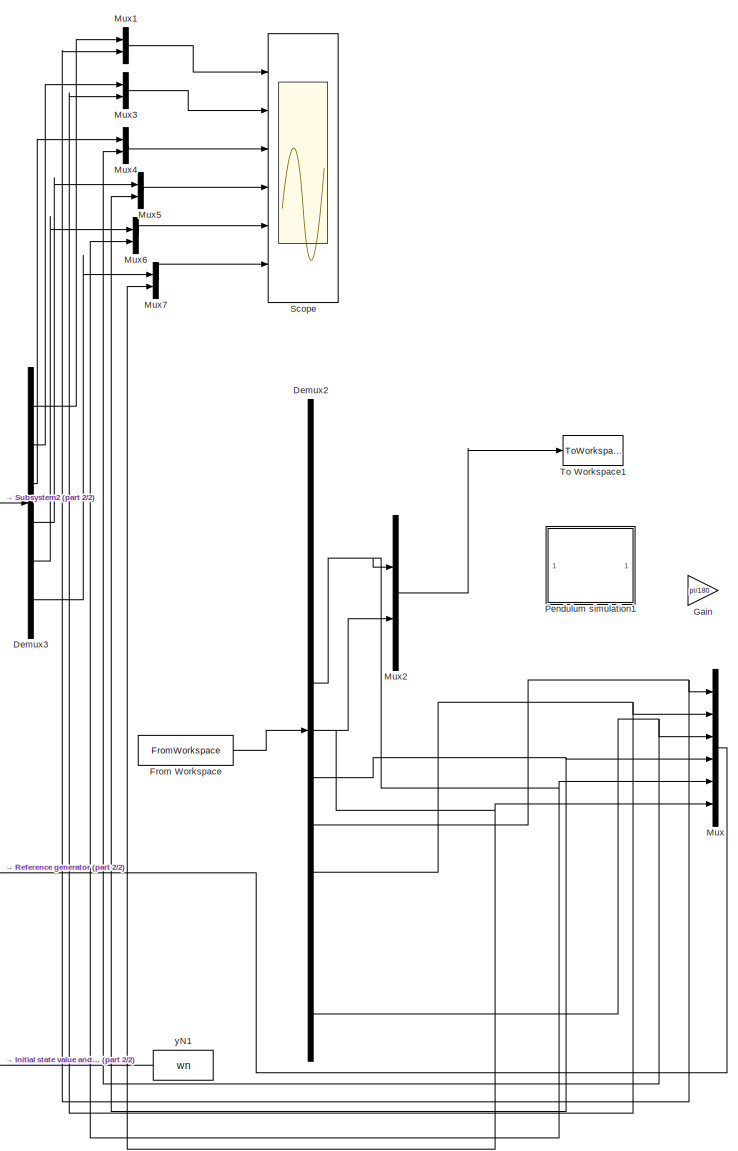
[diagram: root canvas - part 1/2, right side, full height]
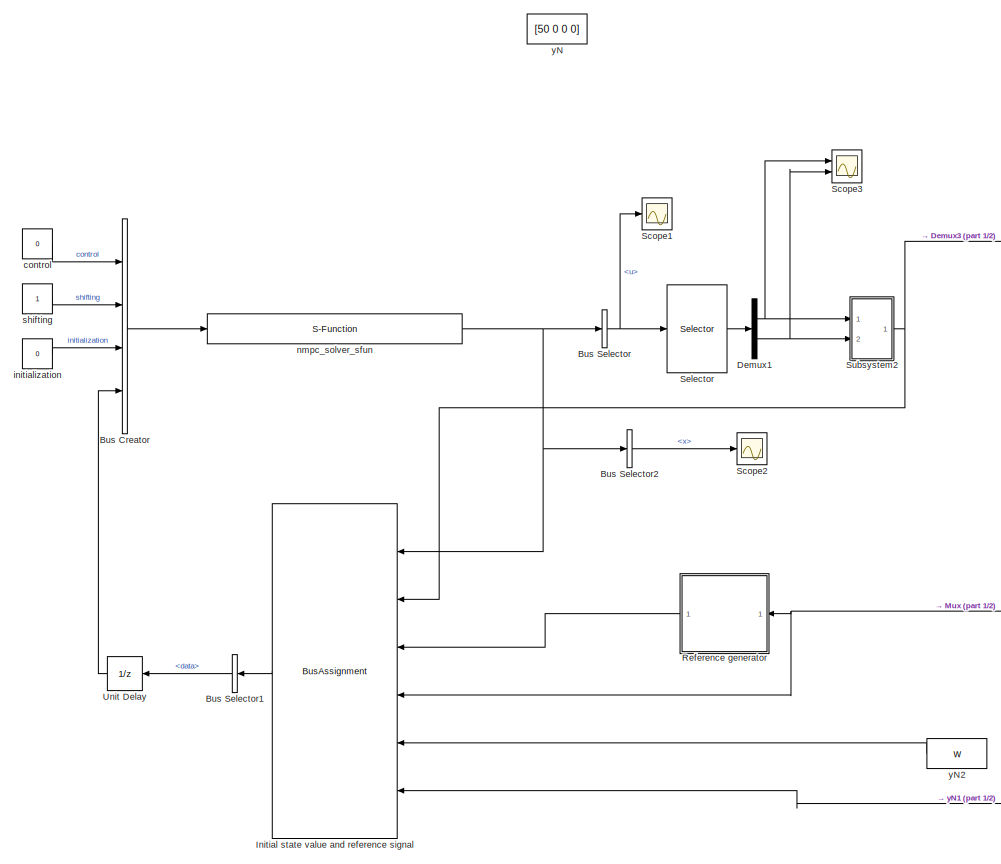
[diagram: root canvas - part 2/2, middle left region]
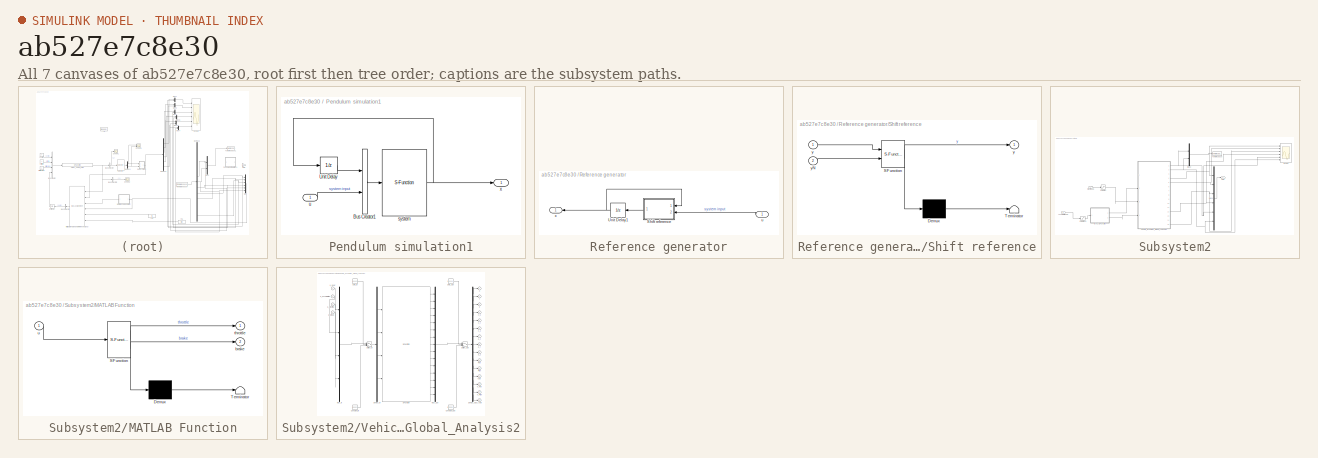
[diagram: thumbnail index - all 7 canvases of the model, root first then tree order]
MODEL slx_ab527e7c8e30
KIND model
CONFIG AbsTol = auto
CONFIG FixedStep = 0.001
CONFIG MaxStep = auto
CONFIG MinStep = auto
CONFIG RelTol = 1e-3
CONFIG SampleTimeConstraint = Unconstrained
CONFIG Solver = FixedStepAuto
CONFIG SolverMode = Auto
CONFIG SolverName = FixedStepAuto
CONFIG StartTime = 0.0
CONFIG StopTime = 2.38
BLOCK [BusCreator] Bus Creator
  DisplayOption = bar
  InheritFromInputs = on
  Inputs = 4
  OutDataTypeStr = Bus: ACADOinput
  Ports = [4, 1]
BLOCK [BusSelector] Bus Selector
  OutputSignals = data.u
  Ports = [1, 1]
BLOCK [BusSelector] Bus Selector1
  OutputSignals = data
  Ports = [1, 1]
BLOCK [BusSelector] Bus Selector2
  OutputSignals = data.x
  Ports = [1, 1]
BLOCK [Demux] Demux1
  DisplayOption = bar
  Outputs = 2
  Ports = [1, 2]
BLOCK [Demux] Demux2
  DisplayOption = bar
  Outputs = 13
  Ports = [1, 13]
BLOCK [Demux] Demux3
  DisplayOption = bar
  Outputs = 6
  Ports = [1, 6]
BLOCK [FromWorkspace] From Workspace
  SampleTime = 0.001
  VariableName = ddd
  ZeroCross = on
BLOCK [Gain] Gain
  Gain = pi/180
  OutDataTypeStr = Inherit: Inherit via internal rule
  ParamDataTypeStr = Inherit: Inherit via internal rule
  SaturateOnIntegerOverflow = off
BLOCK [BusAssignment] Initial state value and reference signal
  AssignedSignals = data.x0,data.y,data.yN,data.W,data.WN
  Ports = [6, 1]
BLOCK [Mux] Mux
  DisplayOption = bar
  Inputs = 6
  Ports = [6, 1]
BLOCK [Mux] Mux1
  DisplayOption = bar
  Inputs = 2
  Ports = [2, 1]
BLOCK [Mux] Mux2
  DisplayOption = bar
  Inputs = 2
  Ports = [2, 1]
BLOCK [Mux] Mux3
  DisplayOption = bar
  Inputs = 2
  Ports = [2, 1]
BLOCK [Mux] Mux4
  DisplayOption = bar
  Inputs = 2
  Ports = [2, 1]
BLOCK [Mux] Mux5
  DisplayOption = bar
  Inputs = 2
  Ports = [2, 1]
BLOCK [Mux] Mux6
  DisplayOption = bar
  Inputs = 2
  Ports = [2, 1]
BLOCK [Mux] Mux7
  DisplayOption = bar
  Inputs = 2
  Ports = [2, 1]
BLOCK [SubSystem] Pendulum simulation1
  Commented = on
  Ports = [1, 1]
  RequestExecContextInheritance = off
  Variant = off
BLOCK [BusCreator] Pendulum simulation1/Bus Creator1
  DisplayOption = bar
  InheritFromInputs = on
  Inputs = 2
  Ports = [2, 1]
BLOCK [UnitDelay] Pendulum simulation1/Unit Delay
  InitialCondition = init.x0
  InputProcessing = Elements as channels (sample based)
  SampleTime = Ts
BLOCK [S-Function] Pendulum simulation1/system
  EnableBusSupport = off
  FunctionName = systemModel
  Ports = [1, 1]
  SFunctionDeploymentMode = off
BLOCK [Inport] Pendulum simulation1/u
  IconDisplay = Port number
BLOCK [Outport] Pendulum simulation1/x
  IconDisplay = Port number
BLOCK [SubSystem] Reference generator
  Ports = [1, 1]
  RequestExecContextInheritance = off
  Variant = off
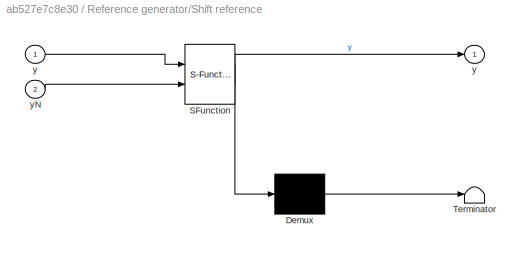
BLOCK [SubSystem] Reference generator/Shift reference
  ErrorFcn = Stateflow.Translate.translate
  PermitHierarchicalResolution = ExplicitOnly
  Ports = [2, 1]
  RequestExecContextInheritance = off
  SFBlockType = MATLAB Function
  TreatAsAtomicUnit = on
  Variant = off
BLOCK [Demux] Reference generator/Shift reference/ Demux 
  Outputs = 1
  Ports = [1, 1]
BLOCK [S-Function] Reference generator/Shift reference/ SFunction 
  EnableBusSupport = on
  FunctionName = sf_sfun
  PortCounts = [2 2]
  Ports = [2, 2]
  SFunctionDeploymentMode = off
  Tag = Stateflow S-Function untitled1 2
BLOCK [Terminator] Reference generator/Shift reference/ Terminator 
BLOCK [Outport] Reference generator/Shift reference/y
  IconDisplay = Port number
BLOCK [Inport] Reference generator/Shift reference/y 
  IconDisplay = Port number
BLOCK [Inport] Reference generator/Shift reference/yN
  IconDisplay = Port number
  Port = 2
BLOCK [UnitDelay] Reference generator/Unit Delay1
  InitialCondition = init.y
  SampleTime = Ts
BLOCK [Inport] Reference generator/u
  IconDisplay = Port number
BLOCK [Outport] Reference generator/x
  IconDisplay = Port number
BLOCK [Scope] Scope
  NumInputPorts = 6
  Ports = [6]
  ScopeSpecificationString = Simulink.scopes.TimeScopeBlockCfg('CurrentConfiguration', extmgr.ConfigurationSet(extmgr.Configuration('Core','General UI',true),extmgr.Configuration('Core','Source UI',true),extmgr.Configuration('Sources','WiredSimulink',true,'DataLoggingSaveFormat','Array','DataLoggingDecimation','1'),extmgr.Configuration('Visuals','Time Domain',true,'TimeAxisLabels','All','SerializedDisplays',{struct('MinYLimRe...<+5107ch>
BLOCK [Scope] Scope1
  Ports = [1]
  ScopeSpecificationString = Simulink.scopes.TimeScopeBlockCfg('CurrentConfiguration', extmgr.ConfigurationSet(extmgr.Configuration('Core','General UI',true),extmgr.Configuration('Core','Source UI',true),extmgr.Configuration('Sources','WiredSimulink',true,'DataLoggingVariableName','ScopeData1'),extmgr.Configuration('Visuals','Time Domain',true,'SerializedDisplays',{struct('MinYLimReal','-1.25','MaxYLimReal','1.25','YLabelReal...<+2932ch>
BLOCK [Scope] Scope2
  Ports = [1]
  ScopeSpecificationString = Simulink.scopes.TimeScopeBlockCfg('CurrentConfiguration', extmgr.ConfigurationSet(extmgr.Configuration('Core','General UI',true),extmgr.Configuration('Core','Source UI',true),extmgr.Configuration('Sources','WiredSimulink',true,'DataLoggingVariableName','ScopeData1'),extmgr.Configuration('Visuals','Time Domain',true,'SerializedDisplays',{struct('MinYLimReal','-1.00000','MaxYLimReal','1.00000','YLab...<+3810ch>
BLOCK [Scope] Scope3
  NumInputPorts = 2
  Ports = [2]
  ScopeSpecificationString = Simulink.scopes.TimeScopeBlockCfg('CurrentConfiguration', extmgr.ConfigurationSet(extmgr.Configuration('Core','General UI',true),extmgr.Configuration('Core','Source UI',true),extmgr.Configuration('Sources','WiredSimulink',true,'DataLoggingVariableName','ScopeData2'),extmgr.Configuration('Visuals','Time Domain',true,'SerializedDisplays',{struct('MinYLimReal','-0.7854','MaxYLimReal','0.7854','YLabel...<+2060ch>
BLOCK [Selector] Selector
  IndexOptions = Index vector (dialog)
  Indices = [1 2]
  InputPortWidth = 160
  OutputSizes = 2
  Ports = [1, 1]
BLOCK [SubSystem] Subsystem2
  Ports = [2, 1]
  RequestExecContextInheritance = off
  Variant = off
BLOCK [Inport] Subsystem2/Acceleration U2
  IconDisplay = Port number
  Port = 2
BLOCK [SubSystem] Subsystem2/MATLAB Function
  ErrorFcn = Stateflow.Translate.translate
  PermitHierarchicalResolution = ExplicitOnly
  Ports = [1, 2]
  RequestExecContextInheritance = off
  SFBlockType = MATLAB Function
  TreatAsAtomicUnit = on
  Variant = off
BLOCK [Demux] Subsystem2/MATLAB Function/ Demux 
  Outputs = 1
  Ports = [1, 1]
BLOCK [S-Function] Subsystem2/MATLAB Function/ SFunction 
  EnableBusSupport = on
  FunctionName = sf_sfun
  PortCounts = [1 3]
  Ports = [1, 3]
  SFunctionDeploymentMode = off
  Tag = Stateflow S-Function untitled1 1
BLOCK [Terminator] Subsystem2/MATLAB Function/ Terminator 
BLOCK [Outport] Subsystem2/MATLAB Function/brake
  IconDisplay = Port number
  Port = 2
BLOCK [Outport] Subsystem2/MATLAB Function/throttle
  IconDisplay = Port number
BLOCK [Inport] Subsystem2/MATLAB Function/u
  IconDisplay = Port number
BLOCK [Mux] Subsystem2/Mux1
  DisplayOption = bar
  Inputs = 6
  Ports = [6, 1]
BLOCK [Mux] Subsystem2/Mux2
  DisplayOption = bar
  Inputs = 2
  Ports = [2, 1]
BLOCK [Outport] Subsystem2/Out1
  IconDisplay = Port number
BLOCK [Saturate] Subsystem2/Saturation
  InputPortMap = u0
  LowerLimit = -1
  Ports = [1, 1]
  UpperLimit = 1
BLOCK [Saturate] Subsystem2/Saturation1
  InputPortMap = u0
  LowerLimit = -1
  Ports = [1, 1]
  UpperLimit = 1
BLOCK [Scope] Subsystem2/Scope
  NumInputPorts = 6
  Ports = [6]
  ScopeSpecificationString = Simulink.scopes.TimeScopeBlockCfg('CurrentConfiguration', extmgr.ConfigurationSet(extmgr.Configuration('Core','General UI',true),extmgr.Configuration('Core','Source UI',true),extmgr.Configuration('Sources','WiredSimulink',true,'DataLoggingVariableName','ScopeData1'),extmgr.Configuration('Visuals','Time Domain',true,'SerializedDisplays',{struct('MinYLimReal','22.76003','MaxYLimReal','24.63111','YLa...<+4965ch>
BLOCK [Inport] Subsystem2/Steering U1
  IconDisplay = Port number
BLOCK [ToWorkspace] Subsystem2/To Workspace
  FixptAsFi = on
  MaxDataPoints = inf
  Ports = [1]
  SampleTime = -1
  Save2DSignal = 3-D array (concatenate along third dimension)
  VariableName = trajE1
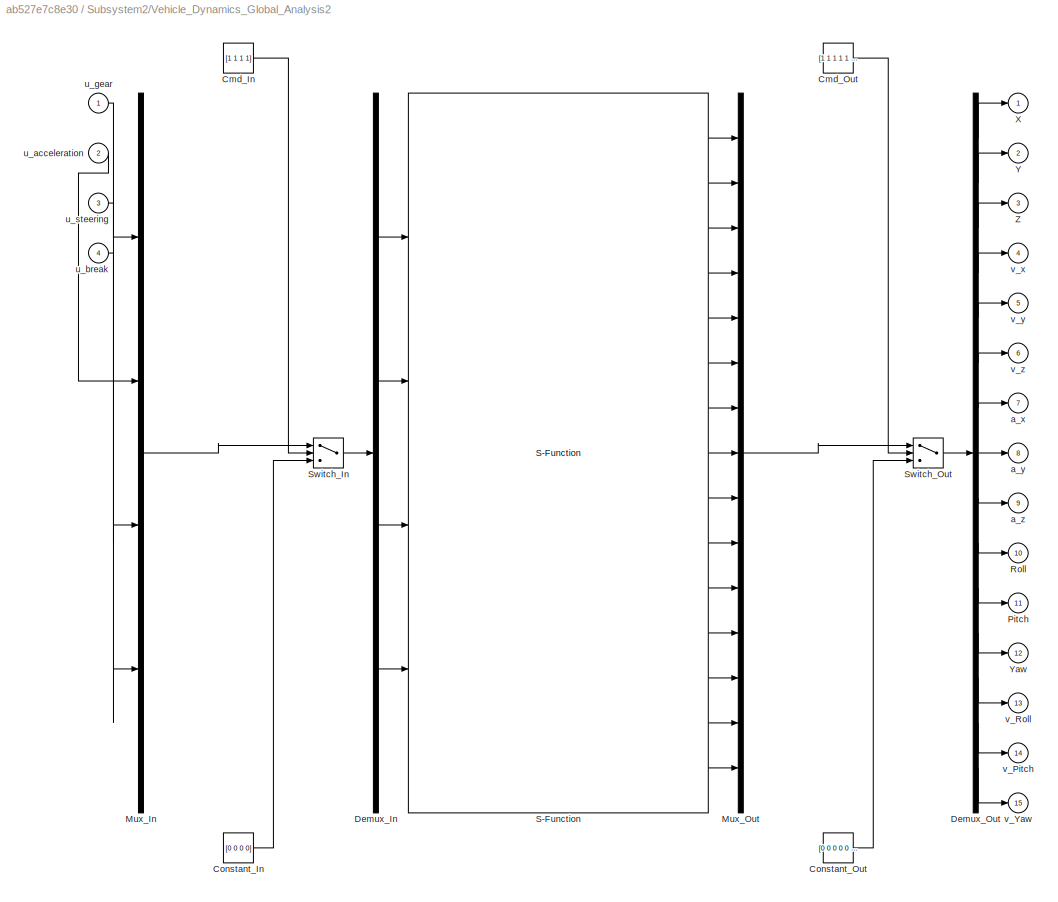
BLOCK [SubSystem] Subsystem2/Vehicle_Dynamics_Global_Analysis2
  DeleteFcn = AMESimLib_deleteBlock
  InitFcn = AMESimLib_initBlock
  OpenFcn = AMESimLib_openBlock('AME2SLCoSim')
  Ports = [4, 15]
  RequestExecContextInheritance = off
  ShowPortLabels = FromPortBlockName
  StartFcn = AMESimLib_startBlock
  StopFcn = AMESimLib_stopBlock
  Tag = AME2SLCoSim
  UserDataPersistent = on
  Variant = off
BLOCK [Constant] Subsystem2/Vehicle_Dynamics_Global_Analysis2/Cmd_In
  Value = [1 1 1 1]
BLOCK [Constant] Subsystem2/Vehicle_Dynamics_Global_Analysis2/Cmd_Out
  Value = [1 1 1 1 1 1 1 1 1 1 1 1 1 1 1]
BLOCK [Constant] Subsystem2/Vehicle_Dynamics_Global_Analysis2/Constant_In
  Value = [0 0 0 0]
BLOCK [Constant] Subsystem2/Vehicle_Dynamics_Global_Analysis2/Constant_Out
  Value = [0 0 0 0 0 0 0 0 0 0 0 0 0 0 0]
BLOCK [Demux] Subsystem2/Vehicle_Dynamics_Global_Analysis2/Demux_In
  DisplayOption = bar
  Ports = [1, 4]
BLOCK [Demux] Subsystem2/Vehicle_Dynamics_Global_Analysis2/Demux_Out
  DisplayOption = bar
  Outputs = 15
  Ports = [1, 15]
BLOCK [Mux] Subsystem2/Vehicle_Dynamics_Global_Analysis2/Mux_In
  DisplayOption = bar
  Ports = [4, 1]
BLOCK [Mux] Subsystem2/Vehicle_Dynamics_Global_Analysis2/Mux_Out
  DisplayOption = bar
  Inputs = 15
  Ports = [15, 1]
BLOCK [Outport] Subsystem2/Vehicle_Dynamics_Global_Analysis2/Pitch
  IconDisplay = Port number
  Port = 11
BLOCK [Outport] Subsystem2/Vehicle_Dynamics_Global_Analysis2/Roll
  IconDisplay = Port number
  Port = 10
BLOCK [S-Function] Subsystem2/Vehicle_Dynamics_Global_Analysis2/S-Function
  EnableBusSupport = off
  FunctionName = Vehicle_Dynamics_Global_Analysis2_
  InitFcn = clear Vehicle_Dynamics_Global_Analysis2_
  Parameters = [0.001;0.001;1e-05;1e+30;100;0;0;2;0;1;0.001;0;1] ['Grav           ';'Xg             ';'Zg             ';'V0             ';'Msprung        ';'Msteer         ';'Msp_front      ';'Mwh_front      ';'Msp_rear       ';'Mwh_rear       ';'Isprung_xx     ';'Isprung_yy     ';'Isprung_zz     ';'Isprung_xy     ';'Isprung_xz     ';'Isprung_yz     ';'Zref_front     ';'Zref_rear      ';'wheelbase      ';'track_...<+467ch>
  Ports = [4, 15]
  SFunctionDeploymentMode = off
  StopFcn = clear Vehicle_Dynamics_Global_Analysis2_
BLOCK [Switch] Subsystem2/Vehicle_Dynamics_Global_Analysis2/Switch_In
  Threshold = 0.5
BLOCK [Switch] Subsystem2/Vehicle_Dynamics_Global_Analysis2/Switch_Out
  Threshold = 0.5
BLOCK [Outport] Subsystem2/Vehicle_Dynamics_Global_Analysis2/X
  IconDisplay = Port number
BLOCK [Outport] Subsystem2/Vehicle_Dynamics_Global_Analysis2/Y
  IconDisplay = Port number
  Port = 2
BLOCK [Outport] Subsystem2/Vehicle_Dynamics_Global_Analysis2/Yaw
  IconDisplay = Port number
  Port = 12
BLOCK [Outport] Subsystem2/Vehicle_Dynamics_Global_Analysis2/Z
  IconDisplay = Port number
  Port = 3
BLOCK [Outport] Subsystem2/Vehicle_Dynamics_Global_Analysis2/a_x
  IconDisplay = Port number
  Port = 7
BLOCK [Outport] Subsystem2/Vehicle_Dynamics_Global_Analysis2/a_y
  IconDisplay = Port number
  Port = 8
BLOCK [Outport] Subsystem2/Vehicle_Dynamics_Global_Analysis2/a_z
  IconDisplay = Port number
  Port = 9
BLOCK [Inport] Subsystem2/Vehicle_Dynamics_Global_Analysis2/u_acceleration
  IconDisplay = Port number
  Port = 2
BLOCK [Inport] Subsystem2/Vehicle_Dynamics_Global_Analysis2/u_break
  IconDisplay = Port number
  Port = 4
BLOCK [Inport] Subsystem2/Vehicle_Dynamics_Global_Analysis2/u_gear
  IconDisplay = Port number
BLOCK [Inport] Subsystem2/Vehicle_Dynamics_Global_Analysis2/u_steering
  IconDisplay = Port number
  Port = 3
BLOCK [Outport] Subsystem2/Vehicle_Dynamics_Global_Analysis2/v_Pitch
  IconDisplay = Port number
  Port = 14
BLOCK [Outport] Subsystem2/Vehicle_Dynamics_Global_Analysis2/v_Roll
  IconDisplay = Port number
  Port = 13
BLOCK [Outport] Subsystem2/Vehicle_Dynamics_Global_Analysis2/v_Yaw
  IconDisplay = Port number
  Port = 15
BLOCK [Outport] Subsystem2/Vehicle_Dynamics_Global_Analysis2/v_x
  IconDisplay = Port number
  Port = 4
BLOCK [Outport] Subsystem2/Vehicle_Dynamics_Global_Analysis2/v_y
  IconDisplay = Port number
  Port = 5
BLOCK [Outport] Subsystem2/Vehicle_Dynamics_Global_Analysis2/v_z
  IconDisplay = Port number
  Port = 6
BLOCK [ToWorkspace] To Workspace1
  FixptAsFi = on
  MaxDataPoints = inf
  Ports = [1]
  SampleTime = -1
  Save2DSignal = 3-D array (concatenate along third dimension)
  VariableName = trajR
BLOCK [UnitDelay] Unit Delay
  InitialCondition = init
  SampleTime = Ts
BLOCK [Constant] control
  OutDataTypeStr = int32
  Value = 0
BLOCK [Constant] initialization
  OutDataTypeStr = int32
  Value = 0
BLOCK [S-Function] nmpc_solver_sfun
  EnableBusSupport = off
  FunctionName = nmpc_solver_sfun
  Ports = [1, 1]
  SFunctionDeploymentMode = off
BLOCK [Constant] shifting
  OutDataTypeStr = int32
BLOCK [Constant] yN
  OutDataTypeStr = double
  Value = [50 0 0 0]
BLOCK [Constant] yN1
  OutDataTypeStr = double
  Value = wn
BLOCK [Constant] yN2
  OutDataTypeStr = double
  Value = w
LINE Bus Creator:1 -> nmpc_solver_sfun:1
LINE Bus Selector1:1 -> Unit Delay:1
LINE Bus Selector2:1 -> Scope2:1
NET Bus Selector:1 -> Scope1:1, Selector:1
NET Demux1:1 -> Scope3:1, Subsystem2:1
NET Demux1:2 -> Scope3:2, Subsystem2:2
NET Demux2:10 -> Mux3:2, Mux:2
NET Demux2:13 -> Mux4:2, Mux:3
NET Demux2:6 -> Mux2:1, Mux6:2, Mux:5
NET Demux2:7 -> Mux2:2, Mux7:2, Mux:6
NET Demux2:8 -> Mux5:2, Mux:4
NET Demux2:9 -> Mux1:2, Mux:1
LINE Demux3:1 -> Mux1:1
LINE Demux3:2 -> Mux3:1
LINE Demux3:3 -> Mux4:1
LINE Demux3:4 -> Mux5:1
LINE Demux3:5 -> Mux6:1
LINE Demux3:6 -> Mux7:1
LINE From Workspace:1 -> Demux2:1
LINE Initial state value and reference signal:1 -> Bus Selector1:1
LINE Mux1:1 -> Scope:1
LINE Mux2:1 -> To Workspace1:1
LINE Mux3:1 -> Scope:2
LINE Mux4:1 -> Scope:3
LINE Mux5:1 -> Scope:4
LINE Mux6:1 -> Scope:5
LINE Mux7:1 -> Scope:6
NET Mux:1 -> Initial state value and reference signal:4, Reference generator:1
LINE Pendulum simulation1/Bus Creator1:1 -> Pendulum simulation1/system:1
LINE Pendulum simulation1/Unit Delay:1 -> Pendulum simulation1/Bus Creator1:1
NET Pendulum simulation1/system:1 -> Pendulum simulation1/Unit Delay:1, Pendulum simulation1/x:1
LINE Pendulum simulation1/u:1 -> Pendulum simulation1/Bus Creator1:2
LINE Reference generator/Shift reference:1 -> Reference generator/Unit Delay1:1
NET Reference generator/Unit Delay1:1 -> Reference generator/Shift reference:1, Reference generator/x:1
LINE Reference generator/u:1 -> Reference generator/Shift reference:2
LINE Reference generator:1 -> Initial state value and reference signal:3
LINE Selector:1 -> Demux1:1
LINE Subsystem2/Acceleration U2:1 -> Subsystem2/Saturation1:1
LINE Subsystem2/MATLAB Function:1 -> Subsystem2/Vehicle_Dynamics_Global_Analysis2:2
LINE Subsystem2/MATLAB Function:2 -> Subsystem2/Vehicle_Dynamics_Global_Analysis2:4
LINE Subsystem2/Mux1:1 -> Subsystem2/Out1:1
LINE Subsystem2/Mux2:1 -> Subsystem2/To Workspace:1
LINE Subsystem2/Saturation1:1 -> Subsystem2/MATLAB Function:1
LINE Subsystem2/Saturation:1 -> Subsystem2/Vehicle_Dynamics_Global_Analysis2:3
LINE Subsystem2/Steering U1:1 -> Subsystem2/Saturation:1
LINE Subsystem2/Vehicle_Dynamics_Global_Analysis2/Cmd_In:1 -> Subsystem2/Vehicle_Dynamics_Global_Analysis2/Switch_In:2
LINE Subsystem2/Vehicle_Dynamics_Global_Analysis2/Cmd_Out:1 -> Subsystem2/Vehicle_Dynamics_Global_Analysis2/Switch_Out:2
LINE Subsystem2/Vehicle_Dynamics_Global_Analysis2/Constant_In:1 -> Subsystem2/Vehicle_Dynamics_Global_Analysis2/Switch_In:3
LINE Subsystem2/Vehicle_Dynamics_Global_Analysis2/Constant_Out:1 -> Subsystem2/Vehicle_Dynamics_Global_Analysis2/Switch_Out:3
LINE Subsystem2/Vehicle_Dynamics_Global_Analysis2/Demux_In:1 -> Subsystem2/Vehicle_Dynamics_Global_Analysis2/S-Function:1
LINE Subsystem2/Vehicle_Dynamics_Global_Analysis2/Demux_In:2 -> Subsystem2/Vehicle_Dynamics_Global_Analysis2/S-Function:2
LINE Subsystem2/Vehicle_Dynamics_Global_Analysis2/Demux_In:3 -> Subsystem2/Vehicle_Dynamics_Global_Analysis2/S-Function:3
LINE Subsystem2/Vehicle_Dynamics_Global_Analysis2/Demux_In:4 -> Subsystem2/Vehicle_Dynamics_Global_Analysis2/S-Function:4
LINE Subsystem2/Vehicle_Dynamics_Global_Analysis2/Demux_Out:1 -> Subsystem2/Vehicle_Dynamics_Global_Analysis2/X:1
LINE Subsystem2/Vehicle_Dynamics_Global_Analysis2/Demux_Out:10 -> Subsystem2/Vehicle_Dynamics_Global_Analysis2/Roll:1
LINE Subsystem2/Vehicle_Dynamics_Global_Analysis2/Demux_Out:11 -> Subsystem2/Vehicle_Dynamics_Global_Analysis2/Pitch:1
LINE Subsystem2/Vehicle_Dynamics_Global_Analysis2/Demux_Out:12 -> Subsystem2/Vehicle_Dynamics_Global_Analysis2/Yaw:1
LINE Subsystem2/Vehicle_Dynamics_Global_Analysis2/Demux_Out:13 -> Subsystem2/Vehicle_Dynamics_Global_Analysis2/v_Roll:1
LINE Subsystem2/Vehicle_Dynamics_Global_Analysis2/Demux_Out:14 -> Subsystem2/Vehicle_Dynamics_Global_Analysis2/v_Pitch:1
LINE Subsystem2/Vehicle_Dynamics_Global_Analysis2/Demux_Out:15 -> Subsystem2/Vehicle_Dynamics_Global_Analysis2/v_Yaw:1
LINE Subsystem2/Vehicle_Dynamics_Global_Analysis2/Demux_Out:2 -> Subsystem2/Vehicle_Dynamics_Global_Analysis2/Y:1
LINE Subsystem2/Vehicle_Dynamics_Global_Analysis2/Demux_Out:3 -> Subsystem2/Vehicle_Dynamics_Global_Analysis2/Z:1
LINE Subsystem2/Vehicle_Dynamics_Global_Analysis2/Demux_Out:4 -> Subsystem2/Vehicle_Dynamics_Global_Analysis2/v_x:1
LINE Subsystem2/Vehicle_Dynamics_Global_Analysis2/Demux_Out:5 -> Subsystem2/Vehicle_Dynamics_Global_Analysis2/v_y:1
LINE Subsystem2/Vehicle_Dynamics_Global_Analysis2/Demux_Out:6 -> Subsystem2/Vehicle_Dynamics_Global_Analysis2/v_z:1
LINE Subsystem2/Vehicle_Dynamics_Global_Analysis2/Demux_Out:7 -> Subsystem2/Vehicle_Dynamics_Global_Analysis2/a_x:1
LINE Subsystem2/Vehicle_Dynamics_Global_Analysis2/Demux_Out:8 -> Subsystem2/Vehicle_Dynamics_Global_Analysis2/a_y:1
LINE Subsystem2/Vehicle_Dynamics_Global_Analysis2/Demux_Out:9 -> Subsystem2/Vehicle_Dynamics_Global_Analysis2/a_z:1
LINE Subsystem2/Vehicle_Dynamics_Global_Analysis2/Mux_In:1 -> Subsystem2/Vehicle_Dynamics_Global_Analysis2/Switch_In:1
LINE Subsystem2/Vehicle_Dynamics_Global_Analysis2/Mux_Out:1 -> Subsystem2/Vehicle_Dynamics_Global_Analysis2/Switch_Out:1
LINE Subsystem2/Vehicle_Dynamics_Global_Analysis2/S-Function:1 -> Subsystem2/Vehicle_Dynamics_Global_Analysis2/Mux_Out:1
LINE Subsystem2/Vehicle_Dynamics_Global_Analysis2/S-Function:10 -> Subsystem2/Vehicle_Dynamics_Global_Analysis2/Mux_Out:10
LINE Subsystem2/Vehicle_Dynamics_Global_Analysis2/S-Function:11 -> Subsystem2/Vehicle_Dynamics_Global_Analysis2/Mux_Out:11
LINE Subsystem2/Vehicle_Dynamics_Global_Analysis2/S-Function:12 -> Subsystem2/Vehicle_Dynamics_Global_Analysis2/Mux_Out:12
LINE Subsystem2/Vehicle_Dynamics_Global_Analysis2/S-Function:13 -> Subsystem2/Vehicle_Dynamics_Global_Analysis2/Mux_Out:13
LINE Subsystem2/Vehicle_Dynamics_Global_Analysis2/S-Function:14 -> Subsystem2/Vehicle_Dynamics_Global_Analysis2/Mux_Out:14
LINE Subsystem2/Vehicle_Dynamics_Global_Analysis2/S-Function:15 -> Subsystem2/Vehicle_Dynamics_Global_Analysis2/Mux_Out:15
LINE Subsystem2/Vehicle_Dynamics_Global_Analysis2/S-Function:2 -> Subsystem2/Vehicle_Dynamics_Global_Analysis2/Mux_Out:2
LINE Subsystem2/Vehicle_Dynamics_Global_Analysis2/S-Function:3 -> Subsystem2/Vehicle_Dynamics_Global_Analysis2/Mux_Out:3
LINE Subsystem2/Vehicle_Dynamics_Global_Analysis2/S-Function:4 -> Subsystem2/Vehicle_Dynamics_Global_Analysis2/Mux_Out:4
LINE Subsystem2/Vehicle_Dynamics_Global_Analysis2/S-Function:5 -> Subsystem2/Vehicle_Dynamics_Global_Analysis2/Mux_Out:5
LINE Subsystem2/Vehicle_Dynamics_Global_Analysis2/S-Function:6 -> Subsystem2/Vehicle_Dynamics_Global_Analysis2/Mux_Out:6
LINE Subsystem2/Vehicle_Dynamics_Global_Analysis2/S-Function:7 -> Subsystem2/Vehicle_Dynamics_Global_Analysis2/Mux_Out:7
LINE Subsystem2/Vehicle_Dynamics_Global_Analysis2/S-Function:8 -> Subsystem2/Vehicle_Dynamics_Global_Analysis2/Mux_Out:8
LINE Subsystem2/Vehicle_Dynamics_Global_Analysis2/S-Function:9 -> Subsystem2/Vehicle_Dynamics_Global_Analysis2/Mux_Out:9
LINE Subsystem2/Vehicle_Dynamics_Global_Analysis2/Switch_In:1 -> Subsystem2/Vehicle_Dynamics_Global_Analysis2/Demux_In:1
LINE Subsystem2/Vehicle_Dynamics_Global_Analysis2/Switch_Out:1 -> Subsystem2/Vehicle_Dynamics_Global_Analysis2/Demux_Out:1
LINE Subsystem2/Vehicle_Dynamics_Global_Analysis2/u_acceleration:1 -> Subsystem2/Vehicle_Dynamics_Global_Analysis2/Mux_In:2
LINE Subsystem2/Vehicle_Dynamics_Global_Analysis2/u_break:1 -> Subsystem2/Vehicle_Dynamics_Global_Analysis2/Mux_In:4
LINE Subsystem2/Vehicle_Dynamics_Global_Analysis2/u_gear:1 -> Subsystem2/Vehicle_Dynamics_Global_Analysis2/Mux_In:1
LINE Subsystem2/Vehicle_Dynamics_Global_Analysis2/u_steering:1 -> Subsystem2/Vehicle_Dynamics_Global_Analysis2/Mux_In:3
NET Subsystem2/Vehicle_Dynamics_Global_Analysis2:1 -> Subsystem2/Mux1:5, Subsystem2/Mux2:1, Subsystem2/Scope:5
NET Subsystem2/Vehicle_Dynamics_Global_Analysis2:12 -> Subsystem2/Mux1:4, Subsystem2/Scope:4
NET Subsystem2/Vehicle_Dynamics_Global_Analysis2:15 -> Subsystem2/Mux1:3, Subsystem2/Scope:3
NET Subsystem2/Vehicle_Dynamics_Global_Analysis2:2 -> Subsystem2/Mux1:6, Subsystem2/Mux2:2, Subsystem2/Scope:6
NET Subsystem2/Vehicle_Dynamics_Global_Analysis2:4 -> Subsystem2/Mux1:1, Subsystem2/Scope:1
NET Subsystem2/Vehicle_Dynamics_Global_Analysis2:5 -> Subsystem2/Mux1:2, Subsystem2/Scope:2
NET Subsystem2:1 -> Demux3:1, Initial state value and reference signal:2
LINE Unit Delay:1 -> Bus Creator:4
LINE control:1 -> Bus Creator:1
LINE initialization:1 -> Bus Creator:3
NET nmpc_solver_sfun:1 -> Bus Selector2:1, Bus Selector:1, Initial state value and reference signal:1
LINE shifting:1 -> Bus Creator:2
LINE yN1:1 -> Initial state value and reference signal:6
LINE yN2:1 -> Initial state value and reference signal:5
note: NET lines group one-source signal fan-out (src -> all destinations, sorted); 1:1 wires keep LINE
CHART Subsystem2/MATLAB Function states=1 transitions=1
  STATE_LABEL 'eML_blk_kernel()'
  STATE_LABEL 'SCRIPT:\nfunction [throttle, brake]= fcn(u)\n%#codegen\n\nif u > 0\n    throttle = 1*abs(u);\n    brake = 0;\nelse\n    brake = 1*abs(u);\n    throttle = 0;\nend\n\n\n\nend'
CHART Reference generator/Shift reference states=1 transitions=1
  STATE_LABEL 'eML_blk_kernel()'
  STATE_LABEL 'SCRIPT:\nfunction y = shift_reference(y, yN)\n\nNX = 6;\nNU = 2;\n\ny = [y(NX+NU+1:end);yN;y(end-NU+1:end)];\n'
